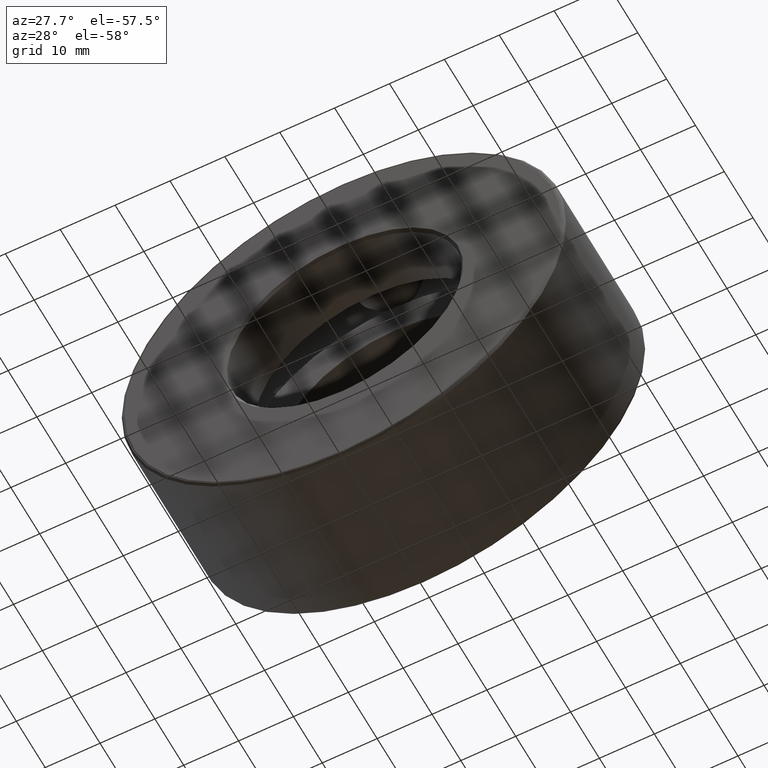
[diagram: clean part render]
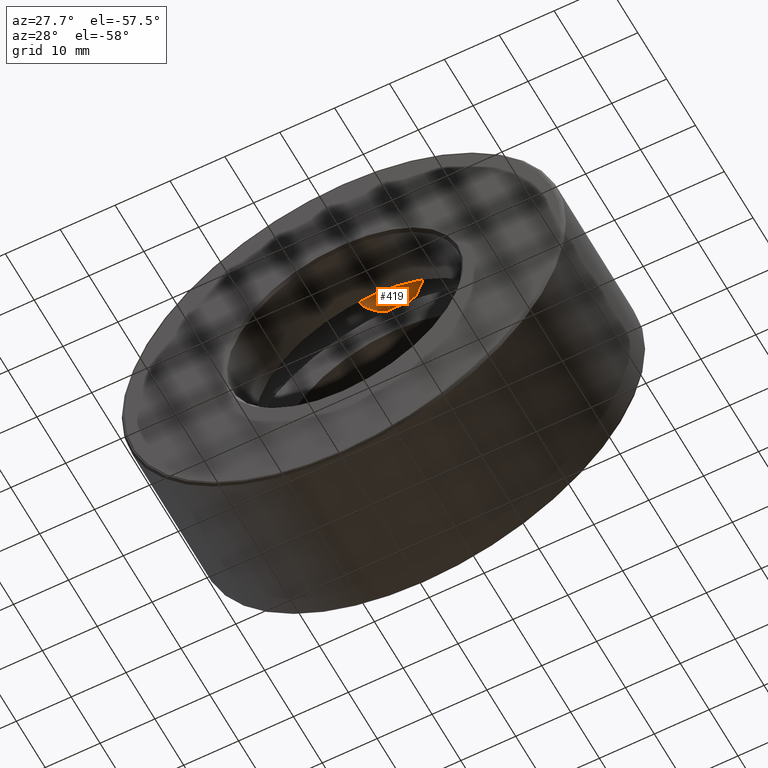
[diagram: same view with one face highlighted and labeled with its STEP entity id]
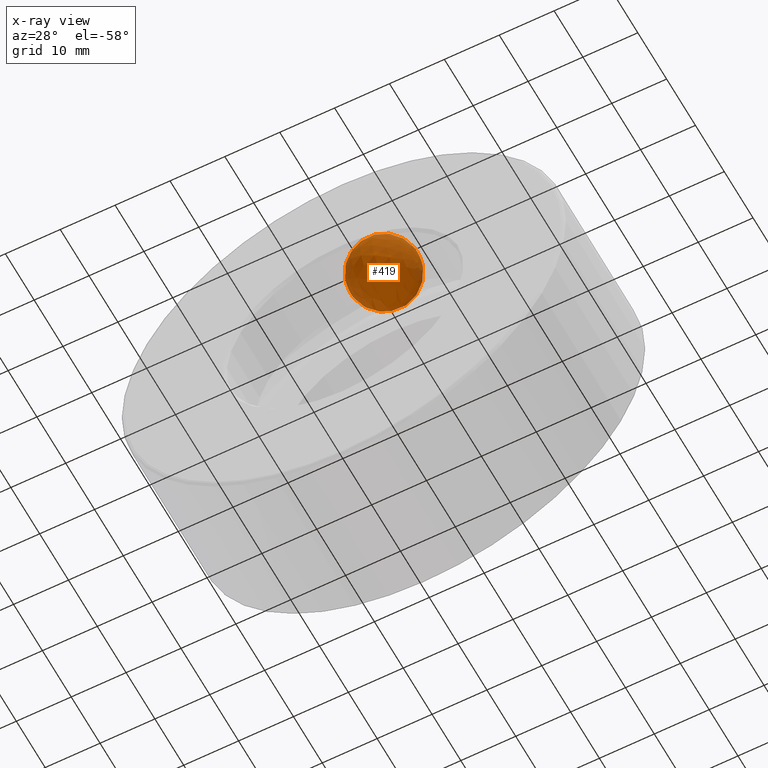
[diagram: x-ray of the same camera — body ghosted, the highlighted face saturated]
A machine part, auxiliary view. The second image highlights one B-rep face of the part: STEP entity #419.
The next image is the same camera in x-ray: the body ghosted, the highlighted face saturated — about 33% of this face is hidden behind the body in this view.
In plain terms, the highlighted spherical surface has radius 6.35 mm.
Its self-contained STEP definition (entity closure, byte-faithful):
#178 = CARTESIAN_POINT ( 'NONE',  ( 4.590425090244008900E-015, 0.5624999999999998900, 1.314749999999999600 ) ) ;
#377 = DIRECTION ( 'NONE',  ( -3.491481338843132600E-015, 0.0000000000000000000, -1.000000000000000000 ) ) ;
#408 = SPHERICAL_SURFACE ( 'NONE', #438, 0.2500000000000000000 ) ;
#419 = ADVANCED_FACE ( 'NONE', ( ), #408, .T. ) ;
#438 = AXIS2_PLACEMENT_3D ( 'NONE', #178, #555, #377 ) ;
#555 = DIRECTION ( 'NONE',  ( -1.000000000000000000, 0.0000000000000000000, 3.491481338843132600E-015 ) ) ;